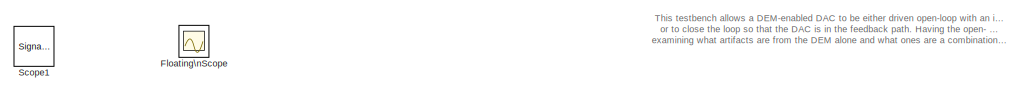
[diagram: root canvas - part 1/4, top left region]
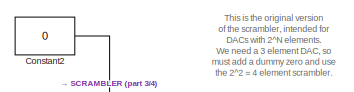
[diagram: root canvas - part 2/4, top right region]
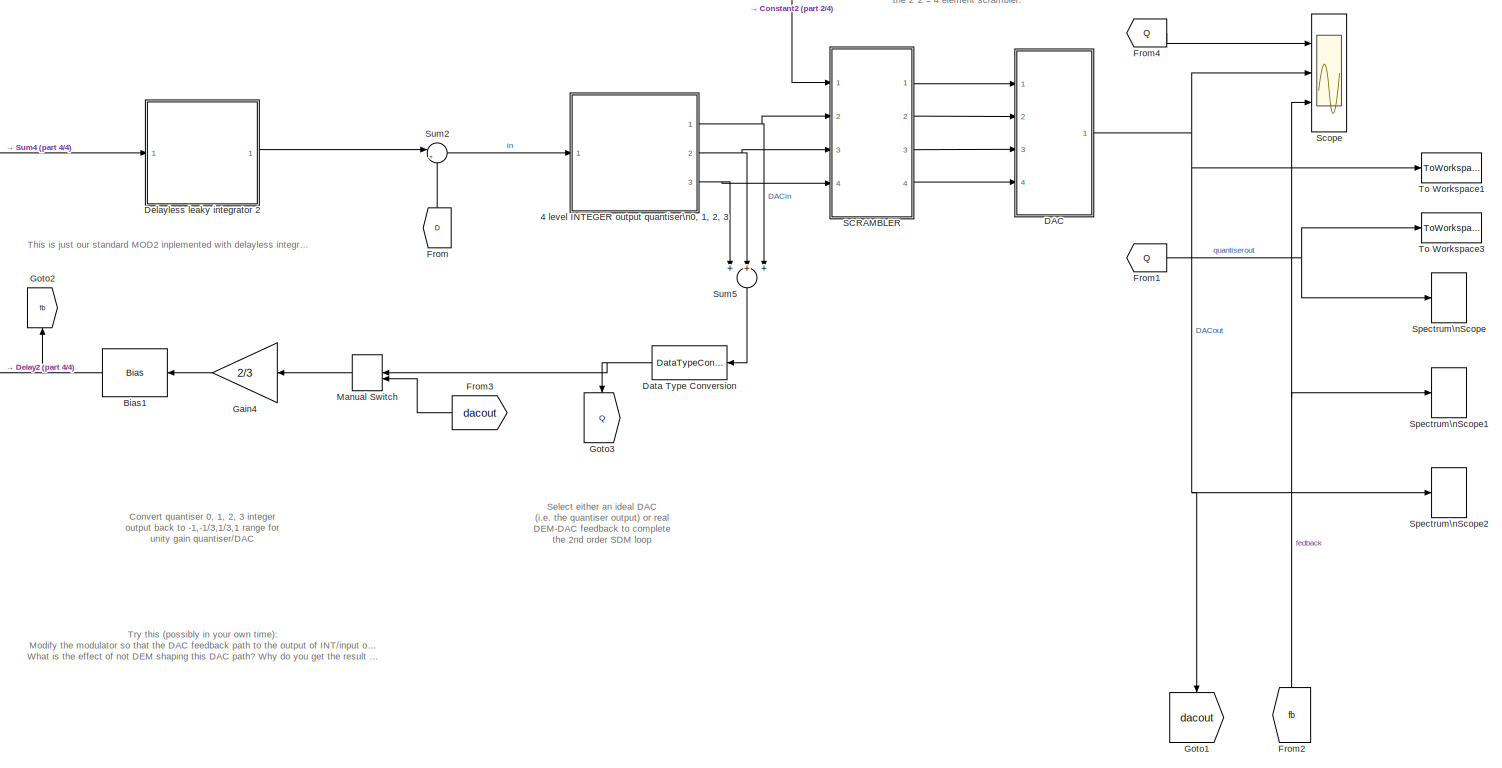
[diagram: root canvas - part 3/4, center side, full height]
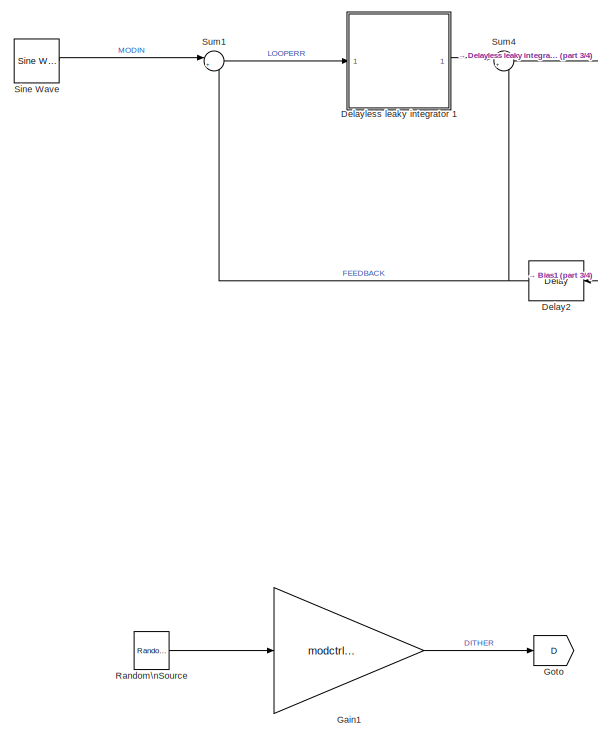
[diagram: root canvas - part 4/4, middle left region]
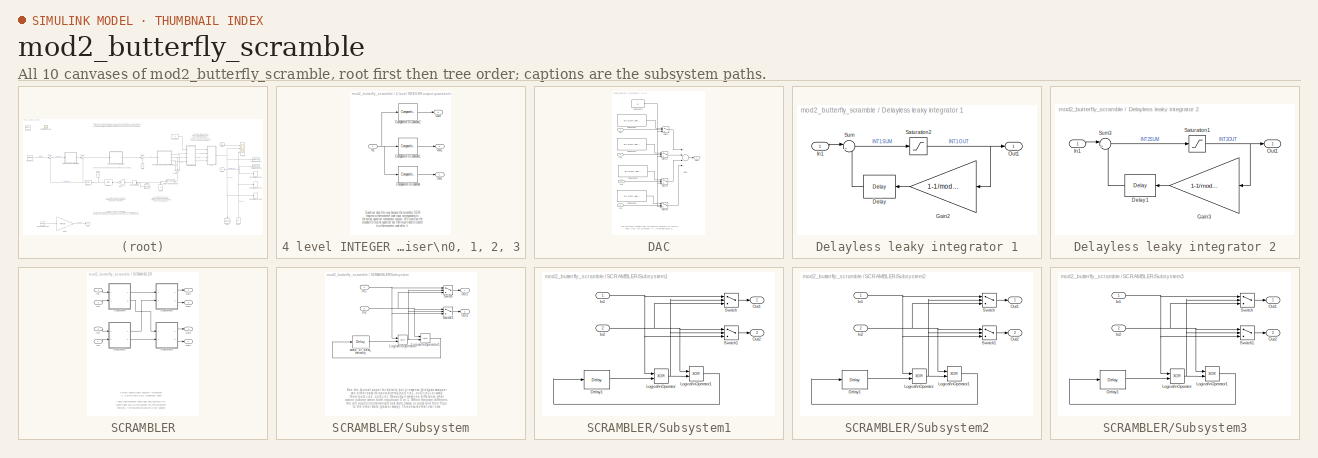
[diagram: thumbnail index - all 10 canvases of the model, root first then tree order]
MODEL mod2_butterfly_scramble
KIND model
BLOCK [SubSystem] 4 level INTEGER  output quantiser\n0, 1, 2, 3
  FunctionWithSeparateData = off
  MaskHideContents = off
  MinAlgLoopOccurrences = off
  Opaque = off
  Ports = [1, 3]
  PropExecContextOutsideSubsystem = off
  RTWSystemCode = Auto
  RequestExecContextInheritance = off
  SID = 106
BLOCK [Reference] 4 level INTEGER  output quantiser\n0, 1, 2, 3/Compare\nTo Constant  REF=simulink/Logic and Bit\nOperations/Compare\nTo Constant
  FunctionWithSeparateData = off
  LogicOutDataTypeMode = uint8
  Ports = [1, 1]
  RTWMemSecDataConstants = Inherit from model
  RTWMemSecDataInternal = Inherit from model
  RTWMemSecDataParameters = Inherit from model
  RTWMemSecFuncExecute = Inherit from model
  RTWMemSecFuncInitTerm = Inherit from model
  SID = 70
  ShowPortLabels = FromPortIcon
  SourceBlock = simulink/Logic and Bit\nOperations/Compare\nTo Constant
  SourceType = Compare To Constant
  SystemSampleTime = -1
  ZeroCross = on
  const = -2/3
  relop = >=
BLOCK [Reference] 4 level INTEGER  output quantiser\n0, 1, 2, 3/Compare\nTo Constant1  REF=simulink/Logic and Bit\nOperations/Compare\nTo Constant
  FunctionWithSeparateData = off
  LogicOutDataTypeMode = uint8
  Ports = [1, 1]
  RTWMemSecDataConstants = Inherit from model
  RTWMemSecDataInternal = Inherit from model
  RTWMemSecDataParameters = Inherit from model
  RTWMemSecFuncExecute = Inherit from model
  RTWMemSecFuncInitTerm = Inherit from model
  SID = 71
  ShowPortLabels = FromPortIcon
  SourceBlock = simulink/Logic and Bit\nOperations/Compare\nTo Constant
  SourceType = Compare To Constant
  SystemSampleTime = -1
  ZeroCross = on
  const = 0
  relop = >=
BLOCK [Reference] 4 level INTEGER  output quantiser\n0, 1, 2, 3/Compare\nTo Constant2  REF=simulink/Logic and Bit\nOperations/Compare\nTo Constant
  FunctionWithSeparateData = off
  LogicOutDataTypeMode = uint8
  Ports = [1, 1]
  RTWMemSecDataConstants = Inherit from model
  RTWMemSecDataInternal = Inherit from model
  RTWMemSecDataParameters = Inherit from model
  RTWMemSecFuncExecute = Inherit from model
  RTWMemSecFuncInitTerm = Inherit from model
  SID = 72
  ShowPortLabels = FromPortIcon
  SourceBlock = simulink/Logic and Bit\nOperations/Compare\nTo Constant
  SourceType = Compare To Constant
  SystemSampleTime = -1
  ZeroCross = on
  const = 2/3
  relop = >=
BLOCK [Inport] 4 level INTEGER  output quantiser\n0, 1, 2, 3/In1
  IconDisplay = Port number
  SID = 107
BLOCK [Outport] 4 level INTEGER  output quantiser\n0, 1, 2, 3/Out1
  IconDisplay = Port number
  SID = 108
BLOCK [Outport] 4 level INTEGER  output quantiser\n0, 1, 2, 3/Out2
  IconDisplay = Port number
  Port = 2
  SID = 126
BLOCK [Outport] 4 level INTEGER  output quantiser\n0, 1, 2, 3/Out3
  IconDisplay = Port number
  Port = 3
  SID = 127
BLOCK [Bias] Bias1
  Bias = -1
  SID = 98
  SaturateOnIntegerOverflow = off
BLOCK [Constant] Constant2
  SID = 179
  SampleTime = 1/Fs
  Value = 0
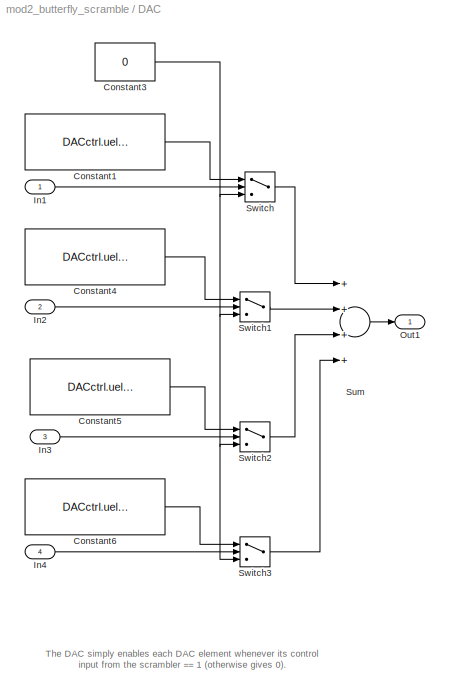
BLOCK [SubSystem] DAC
  FunctionWithSeparateData = off
  MaskHideContents = off
  MinAlgLoopOccurrences = off
  Opaque = off
  Ports = [4, 1]
  PropExecContextOutsideSubsystem = off
  RTWSystemCode = Auto
  RequestExecContextInheritance = off
  SID = 193
BLOCK [Constant] DAC/Constant1
  SID = 90
  SampleTime = 1/Fs
  Value = DACctrl.uelement(1)
BLOCK [Constant] DAC/Constant3
  SID = 182
  SampleTime = 1/Fs
  Value = 0
BLOCK [Constant] DAC/Constant4
  SID = 187
  SampleTime = 1/Fs
  Value = DACctrl.uelement(2)
BLOCK [Constant] DAC/Constant5
  SID = 189
  SampleTime = 1/Fs
  Value = DACctrl.uelement(3)
BLOCK [Constant] DAC/Constant6
  SID = 191
  SampleTime = 1/Fs
  Value = DACctrl.uelement(4)
BLOCK [Inport] DAC/In1
  IconDisplay = Port number
  SID = 194
BLOCK [Inport] DAC/In2
  IconDisplay = Port number
  Port = 2
  SID = 195
BLOCK [Inport] DAC/In3
  IconDisplay = Port number
  Port = 3
  SID = 197
BLOCK [Inport] DAC/In4
  IconDisplay = Port number
  Port = 4
  SID = 198
BLOCK [Outport] DAC/Out1
  IconDisplay = Port number
  SID = 196
BLOCK [Sum] DAC/Sum
  InputSameDT = off
  Inputs = ++++
  OutDataTypeStr = Inherit: Inherit via internal rule
  Ports = [4, 1]
  SID = 183
  SaturateOnIntegerOverflow = off
BLOCK [Switch] DAC/Switch
  InputSameDT = off
  SID = 181
  SaturateOnIntegerOverflow = off
  Threshold = 0.1
BLOCK [Switch] DAC/Switch1
  InputSameDT = off
  SID = 188
  SaturateOnIntegerOverflow = off
  Threshold = 0.1
BLOCK [Switch] DAC/Switch2
  InputSameDT = off
  SID = 190
  SaturateOnIntegerOverflow = off
  Threshold = 0.1
BLOCK [Switch] DAC/Switch3
  InputSameDT = off
  SID = 192
  SaturateOnIntegerOverflow = off
  Threshold = 0.1
BLOCK [DataTypeConversion] Data Type Conversion
  RndMeth = Floor
  SID = 117
  SaturateOnIntegerOverflow = off
BLOCK [Reference] Delay2  REF=dspsigops/Delay
  InputProcessing = Columns as channels (frame based)
  Ports = [1, 1]
  SID = 69
  SourceBlock = dspsigops/Delay
  SourceType = Delay
  UserData = DataTag0
  UserDataPersistent = on
  delay = 1
  dif_ic_for_ch = off
  dif_ic_for_dly = off
  dly_unit = Samples
  ic = 0
  ic_detail = off
  reset_popup = None
BLOCK [SubSystem] Delayless leaky integrator 1
  FunctionWithSeparateData = off
  MaskHideContents = off
  MinAlgLoopOccurrences = off
  Opaque = off
  Ports = [1, 1]
  PropExecContextOutsideSubsystem = off
  RTWSystemCode = Auto
  RequestExecContextInheritance = off
  SID = 109
BLOCK [Reference] Delayless leaky integrator 1/Delay  REF=dspsigops/Delay
  Ports = [1, 1]
  SID = 67
  SourceBlock = dspsigops/Delay
  SourceType = Delay
  UserData = DataTag1
  UserDataPersistent = on
  delay = 1
  dif_ic_for_ch = off
  dif_ic_for_dly = off
  dly_unit = Samples
  ic = 0
  ic_detail = off
  reset_popup = None
BLOCK [Gain] Delayless leaky integrator 1/Gain2
  AttributesFormatString = Integrator leakage
  Gain = 1-1/modctrl.igain1
  OutDataTypeStr = Inherit: Inherit via internal rule
  ParamDataTypeStr = Inherit: Inherit via internal rule
  SID = 32
  SaturateOnIntegerOverflow = off
BLOCK [Inport] Delayless leaky integrator 1/In1
  IconDisplay = Port number
  SID = 111
BLOCK [Outport] Delayless leaky integrator 1/Out1
  IconDisplay = Port number
  SID = 110
BLOCK [Saturate] Delayless leaky integrator 1/Saturation2
  InputPortMap = u0
  LowerLimit = -(modctrl.isat1)
  Ports = [1, 1]
  SID = 86
  UpperLimit = modctrl.isat1
BLOCK [Sum] Delayless leaky integrator 1/Sum
  AttributesFormatString = Integrator summer
  IconShape = round
  InputSameDT = off
  Inputs = |++
  OutDataTypeStr = Inherit: Inherit via internal rule
  Ports = [2, 1]
  SID = 3
  SaturateOnIntegerOverflow = off
BLOCK [SubSystem] Delayless leaky integrator 2
  FunctionWithSeparateData = off
  MaskHideContents = off
  MinAlgLoopOccurrences = off
  Opaque = off
  Ports = [1, 1]
  PropExecContextOutsideSubsystem = off
  RTWSystemCode = Auto
  RequestExecContextInheritance = off
  SID = 112
BLOCK [Reference] Delayless leaky integrator 2/Delay1  REF=dspsigops/Delay
  Ports = [1, 1]
  SID = 68
  SourceBlock = dspsigops/Delay
  SourceType = Delay
  UserData = DataTag2
  UserDataPersistent = on
  delay = 1
  dif_ic_for_ch = off
  dif_ic_for_dly = off
  dly_unit = Samples
  ic = 0
  ic_detail = off
  reset_popup = None
BLOCK [Gain] Delayless leaky integrator 2/Gain3
  AttributesFormatString = Integrator leakage
  Gain = 1-1/modctrl.igain2
  OutDataTypeStr = Inherit: Inherit via internal rule
  ParamDataTypeStr = Inherit: Inherit via internal rule
  SID = 61
  SaturateOnIntegerOverflow = off
BLOCK [Inport] Delayless leaky integrator 2/In1
  IconDisplay = Port number
  SID = 114
BLOCK [Outport] Delayless leaky integrator 2/Out1
  IconDisplay = Port number
  SID = 113
BLOCK [Saturate] Delayless leaky integrator 2/Saturation1
  InputPortMap = u0
  LowerLimit = -(modctrl.isat2)
  Ports = [1, 1]
  SID = 62
  UpperLimit = modctrl.isat2
BLOCK [Sum] Delayless leaky integrator 2/Sum3
  AttributesFormatString = Integrator summer
  IconShape = round
  InputSameDT = off
  Inputs = |++
  OutDataTypeStr = Inherit: Inherit via internal rule
  Ports = [2, 1]
  SID = 63
  SaturateOnIntegerOverflow = off
BLOCK [Scope] Floating\nScope
  DataFormat = StructureWithTime
  Floating = on
  IOType = viewer
  NumInputPorts = 1
  Ports = []
  SID = 201
  SampleTime = 0
  SaveName = ScopeData1
  ShowLegends = off
BLOCK [From] From
  GotoTag = D
  SID = 93
BLOCK [From] From1
  GotoTag = Q
  SID = 123
BLOCK [From] From2
  GotoTag = fb
  SID = 102
BLOCK [From] From3
  GotoTag = dacout
  SID = 124
BLOCK [From] From4
  GotoTag = Q
  SID = 200
BLOCK [Gain] Gain1
  AttributesFormatString = Dither level adjust
  Gain = modctrl.dgain1
  OutDataTypeStr = Inherit: Inherit via internal rule
  ParamDataTypeStr = Inherit: Inherit via internal rule
  SID = 29
  SaturateOnIntegerOverflow = off
BLOCK [Gain] Gain4
  AttributesFormatString = Integrator leakage
  Gain = 2/3
  OutDataTypeStr = Inherit: Inherit via internal rule
  ParamDataTypeStr = Inherit: Inherit via internal rule
  SID = 99
  SaturateOnIntegerOverflow = off
BLOCK [Goto] Goto
  GotoTag = D
  SID = 92
BLOCK [Goto] Goto1
  GotoTag = dacout
  SID = 122
BLOCK [Goto] Goto2
  GotoTag = fb
  SID = 100
BLOCK [Goto] Goto3
  GotoTag = Q
  SID = 125
BLOCK [ManualSwitch] Manual Switch
  SID = 94
BLOCK [Reference] Random\nSource  REF=dspsrcs4/Random\nSource
  AttributesFormatString = Dither source
  CltLength = 12
  DataType = Double
  IsInherit = off
  MaxVal = 1
  MeanVal = 0
  MinVal = -1
  NormMethod = Ziggurat
  OutComplex = Real
  Ports = [0, 1]
  RepMode = Not repeatable
  SID = 25
  SampFrame = 1
  SampMode = Discrete
  SampTime = 1/Fs
  SourceBlock = dspsrcs4/Random\nSource
  SourceType = Random Source
  SrcType = Uniform
  UserData = DataTag3
  UserDataPersistent = on
  VarVal = 1
  rawSeed = 1
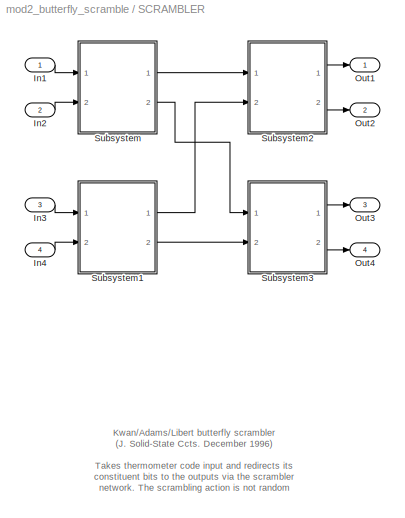
BLOCK [SubSystem] SCRAMBLER
  FunctionWithSeparateData = off
  MaskHideContents = off
  MinAlgLoopOccurrences = off
  Opaque = off
  Ports = [4, 4]
  PropExecContextOutsideSubsystem = off
  RTWSystemCode = Auto
  RequestExecContextInheritance = off
  SID = 170
BLOCK [Inport] SCRAMBLER/In1
  IconDisplay = Port number
  SID = 171
BLOCK [Inport] SCRAMBLER/In2
  IconDisplay = Port number
  Port = 2
  SID = 173
BLOCK [Inport] SCRAMBLER/In3
  IconDisplay = Port number
  Port = 3
  SID = 175
BLOCK [Inport] SCRAMBLER/In4
  IconDisplay = Port number
  Port = 4
  SID = 177
BLOCK [Outport] SCRAMBLER/Out1
  IconDisplay = Port number
  SID = 172
BLOCK [Outport] SCRAMBLER/Out2
  IconDisplay = Port number
  Port = 2
  SID = 174
BLOCK [Outport] SCRAMBLER/Out3
  IconDisplay = Port number
  Port = 3
  SID = 176
BLOCK [Outport] SCRAMBLER/Out4
  IconDisplay = Port number
  Port = 4
  SID = 178
BLOCK [SubSystem] SCRAMBLER/Subsystem
  FunctionWithSeparateData = off
  MaskHideContents = off
  MinAlgLoopOccurrences = off
  Opaque = off
  Ports = [2, 2]
  PropExecContextOutsideSubsystem = off
  RTWSystemCode = Auto
  RequestExecContextInheritance = off
  SID = 135
BLOCK [Inport] SCRAMBLER/Subsystem/In1
  IconDisplay = Port number
  SID = 136
BLOCK [Inport] SCRAMBLER/Subsystem/In2
  IconDisplay = Port number
  Port = 2
  SID = 138
BLOCK [Logic] SCRAMBLER/Subsystem/Logical\nOperator
  AllPortsSameDT = off
  Operator = XOR
  OutDataTypeStr = boolean
  Ports = [2, 1]
  SID = 131
BLOCK [Logic] SCRAMBLER/Subsystem/Logical\nOperator1
  AllPortsSameDT = off
  Operator = XOR
  OutDataTypeStr = boolean
  Ports = [2, 1]
  SID = 132
BLOCK [Outport] SCRAMBLER/Subsystem/Out1
  IconDisplay = Port number
  SID = 137
BLOCK [Outport] SCRAMBLER/Subsystem/Out2
  IconDisplay = Port number
  Port = 2
  SID = 139
BLOCK [Switch] SCRAMBLER/Subsystem/Switch
  InputSameDT = off
  SID = 133
  SaturateOnIntegerOverflow = off
  Threshold = 0.1
BLOCK [Switch] SCRAMBLER/Subsystem/Switch1
  InputSameDT = off
  SID = 134
  SaturateOnIntegerOverflow = off
  Threshold = 0.1
BLOCK [Reference] SCRAMBLER/Subsystem/swap_or_pass_memory  REF=dspsigops/Delay
  Ports = [1, 1]
  SID = 130
  SourceBlock = dspsigops/Delay
  SourceType = Delay
  delay = 1
  dif_ic_for_ch = off
  dif_ic_for_dly = off
  dly_unit = Samples
  ic = 0
  ic_detail = off
  reset_popup = None
BLOCK [SubSystem] SCRAMBLER/Subsystem1
  FunctionWithSeparateData = off
  MaskHideContents = off
  MinAlgLoopOccurrences = off
  Opaque = off
  Ports = [2, 2]
  PropExecContextOutsideSubsystem = off
  RTWSystemCode = Auto
  RequestExecContextInheritance = off
  SID = 140
BLOCK [Reference] SCRAMBLER/Subsystem1/Delay1  REF=dspsigops/Delay
  Ports = [1, 1]
  SID = 143
  SourceBlock = dspsigops/Delay
  SourceType = Delay
  delay = 1
  dif_ic_for_ch = off
  dif_ic_for_dly = off
  dly_unit = Samples
  ic = 0
  ic_detail = off
  reset_popup = None
BLOCK [Inport] SCRAMBLER/Subsystem1/In1
  IconDisplay = Port number
  SID = 141
BLOCK [Inport] SCRAMBLER/Subsystem1/In2
  IconDisplay = Port number
  Port = 2
  SID = 142
BLOCK [Logic] SCRAMBLER/Subsystem1/Logical\nOperator
  AllPortsSameDT = off
  Operator = XOR
  OutDataTypeStr = boolean
  Ports = [2, 1]
  SID = 144
BLOCK [Logic] SCRAMBLER/Subsystem1/Logical\nOperator1
  AllPortsSameDT = off
  Operator = XOR
  OutDataTypeStr = boolean
  Ports = [2, 1]
  SID = 145
BLOCK [Outport] SCRAMBLER/Subsystem1/Out1
  IconDisplay = Port number
  SID = 148
BLOCK [Outport] SCRAMBLER/Subsystem1/Out2
  IconDisplay = Port number
  Port = 2
  SID = 149
BLOCK [Switch] SCRAMBLER/Subsystem1/Switch
  InputSameDT = off
  SID = 146
  SaturateOnIntegerOverflow = off
  Threshold = 0.1
BLOCK [Switch] SCRAMBLER/Subsystem1/Switch1
  InputSameDT = off
  SID = 147
  SaturateOnIntegerOverflow = off
  Threshold = 0.1
BLOCK [SubSystem] SCRAMBLER/Subsystem2
  FunctionWithSeparateData = off
  MaskHideContents = off
  MinAlgLoopOccurrences = off
  Opaque = off
  Ports = [2, 2]
  PropExecContextOutsideSubsystem = off
  RTWSystemCode = Auto
  RequestExecContextInheritance = off
  SID = 150
BLOCK [Reference] SCRAMBLER/Subsystem2/Delay1  REF=dspsigops/Delay
  Ports = [1, 1]
  SID = 153
  SourceBlock = dspsigops/Delay
  SourceType = Delay
  delay = 1
  dif_ic_for_ch = off
  dif_ic_for_dly = off
  dly_unit = Samples
  ic = 0
  ic_detail = off
  reset_popup = None
BLOCK [Inport] SCRAMBLER/Subsystem2/In1
  IconDisplay = Port number
  SID = 151
BLOCK [Inport] SCRAMBLER/Subsystem2/In2
  IconDisplay = Port number
  Port = 2
  SID = 152
BLOCK [Logic] SCRAMBLER/Subsystem2/Logical\nOperator
  AllPortsSameDT = off
  Operator = XOR
  OutDataTypeStr = boolean
  Ports = [2, 1]
  SID = 154
BLOCK [Logic] SCRAMBLER/Subsystem2/Logical\nOperator1
  AllPortsSameDT = off
  Operator = XOR
  OutDataTypeStr = boolean
  Ports = [2, 1]
  SID = 155
BLOCK [Outport] SCRAMBLER/Subsystem2/Out1
  IconDisplay = Port number
  SID = 158
BLOCK [Outport] SCRAMBLER/Subsystem2/Out2
  IconDisplay = Port number
  Port = 2
  SID = 159
BLOCK [Switch] SCRAMBLER/Subsystem2/Switch
  InputSameDT = off
  SID = 156
  SaturateOnIntegerOverflow = off
  Threshold = 0.1
BLOCK [Switch] SCRAMBLER/Subsystem2/Switch1
  InputSameDT = off
  SID = 157
  SaturateOnIntegerOverflow = off
  Threshold = 0.1
BLOCK [SubSystem] SCRAMBLER/Subsystem3
  FunctionWithSeparateData = off
  MaskHideContents = off
  MinAlgLoopOccurrences = off
  Opaque = off
  Ports = [2, 2]
  PropExecContextOutsideSubsystem = off
  RTWSystemCode = Auto
  RequestExecContextInheritance = off
  SID = 160
BLOCK [Reference] SCRAMBLER/Subsystem3/Delay1  REF=dspsigops/Delay
  Ports = [1, 1]
  SID = 163
  SourceBlock = dspsigops/Delay
  SourceType = Delay
  delay = 1
  dif_ic_for_ch = off
  dif_ic_for_dly = off
  dly_unit = Samples
  ic = 0
  ic_detail = off
  reset_popup = None
BLOCK [Inport] SCRAMBLER/Subsystem3/In1
  IconDisplay = Port number
  SID = 161
BLOCK [Inport] SCRAMBLER/Subsystem3/In2
  IconDisplay = Port number
  Port = 2
  SID = 162
BLOCK [Logic] SCRAMBLER/Subsystem3/Logical\nOperator
  AllPortsSameDT = off
  Operator = XOR
  OutDataTypeStr = boolean
  Ports = [2, 1]
  SID = 164
BLOCK [Logic] SCRAMBLER/Subsystem3/Logical\nOperator1
  AllPortsSameDT = off
  Operator = XOR
  OutDataTypeStr = boolean
  Ports = [2, 1]
  SID = 165
BLOCK [Outport] SCRAMBLER/Subsystem3/Out1
  IconDisplay = Port number
  SID = 168
BLOCK [Outport] SCRAMBLER/Subsystem3/Out2
  IconDisplay = Port number
  Port = 2
  SID = 169
BLOCK [Switch] SCRAMBLER/Subsystem3/Switch
  InputSameDT = off
  SID = 166
  SaturateOnIntegerOverflow = off
  Threshold = 0.1
BLOCK [Switch] SCRAMBLER/Subsystem3/Switch1
  InputSameDT = off
  SID = 167
  SaturateOnIntegerOverflow = off
  Threshold = 0.1
BLOCK [Scope] Scope
  DataFormat = StructureWithTime
  Floating = off
  NumInputPorts = 3
  Ports = [3]
  SID = 80
  SampleTime = 0
  ShowLegends = off
  YMax = 5~5~5
  YMin = -5~-5~-5
  ZoomMode = xonly
BLOCK [SignalViewerScope] Scope1
  IOType = viewer
  MaxDataPoints = 7500
  NumInputPorts = 1
  Ports = []
  RefreshTime = 0.035000
  SID = 202
  ShowDataMarkers = off
  ShowLegends = off
BLOCK [Reference] Sine Wave  REF=dspsrcs4/Sine Wave
  Amplitude = sinamp
  CompMethod = Trigonometric fcn
  Frequency = sinfreq
  LastOutDataTypeStr = double
  OutComplex = Real
  OutDataTypeStr = double
  Phase = 0
  Ports = [0, 1]
  ResetState = Restart at time zero
  SID = 85
  SampleMode = Discrete
  SampleTime = 1/Fs
  SamplesPerFrame = 1
  SourceBlock = dspsrcs4/Sine Wave
  SourceType = Sine Wave
  TableSize = Speed
  additionalParams = off
  allowOverrides = on
  dataType = double
  fracBitsMode = Best precision
  numFracBits = 15
  udDataType = sfix(16)
  wordLen = 16
BLOCK [SpectrumAnalyzer] Spectrum\nScope
  CloseFcn = scopeextensions.ScopeBlock.callback(gcbh, 'onBlockClose');
  CopyFcn = scopeextensions.ScopeBlock.callback(gcbh, 'onBlockCopy', gcbh);
  DeleteFcn = scopeextensions.ScopeBlock.callback(gcbh, 'onBlockDelete');
  NameChangeFcn = scopeextensions.ScopeBlock.callback(gcbh, 'onBlockRename');
  Ports = [1]
  PreDeleteFcn = scopeextensions.ScopeBlock.callback(gcbh, 'onBlockPreDelete');
  PreSaveFcn = scopeextensions.ScopeBlock.callback(gcbh, 'onModelSave');
  SID = 21
  UserData = DataTag4
  UserDataPersistent = on
BLOCK [SpectrumAnalyzer] Spectrum\nScope1
  CloseFcn = scopeextensions.ScopeBlock.callback(gcbh, 'onBlockClose');
  CopyFcn = scopeextensions.ScopeBlock.callback(gcbh, 'onBlockCopy', gcbh);
  DeleteFcn = scopeextensions.ScopeBlock.callback(gcbh, 'onBlockDelete');
  NameChangeFcn = scopeextensions.ScopeBlock.callback(gcbh, 'onBlockRename');
  Ports = [1]
  PreDeleteFcn = scopeextensions.ScopeBlock.callback(gcbh, 'onBlockPreDelete');
  PreSaveFcn = scopeextensions.ScopeBlock.callback(gcbh, 'onModelSave');
  SID = 203
  UserData = DataTag5
  UserDataPersistent = on
BLOCK [SpectrumAnalyzer] Spectrum\nScope2
  CloseFcn = scopeextensions.ScopeBlock.callback(gcbh, 'onBlockClose');
  CopyFcn = scopeextensions.ScopeBlock.callback(gcbh, 'onBlockCopy', gcbh);
  DeleteFcn = scopeextensions.ScopeBlock.callback(gcbh, 'onBlockDelete');
  NameChangeFcn = scopeextensions.ScopeBlock.callback(gcbh, 'onBlockRename');
  Ports = [1]
  PreDeleteFcn = scopeextensions.ScopeBlock.callback(gcbh, 'onBlockPreDelete');
  PreSaveFcn = scopeextensions.ScopeBlock.callback(gcbh, 'onModelSave');
  SID = 204
  UserData = DataTag6
  UserDataPersistent = on
BLOCK [Sum] Sum1
  AttributesFormatString = Modulator input\\nloop servo error (input - fbk)
  IconShape = round
  InputSameDT = off
  Inputs = |+-
  OutDataTypeStr = Inherit: Inherit via internal rule
  Ports = [2, 1]
  SID = 7
  SaturateOnIntegerOverflow = off
BLOCK [Sum] Sum2
  IconShape = round
  InputSameDT = off
  Inputs = |++
  OutDataTypeStr = Inherit: Inherit via internal rule
  Ports = [2, 1]
  SID = 30
  SaturateOnIntegerOverflow = off
BLOCK [Sum] Sum4
  IconShape = round
  InputSameDT = off
  Inputs = |+-
  OutDataTypeStr = Inherit: Inherit via internal rule
  Ports = [2, 1]
  SID = 64
  SaturateOnIntegerOverflow = off
BLOCK [Sum] Sum5
  InputSameDT = off
  Inputs = +++
  OutDataTypeStr = Inherit: Inherit via internal rule
  Ports = [3, 1]
  SID = 129
  SaturateOnIntegerOverflow = off
BLOCK [ToWorkspace] To Workspace1
  MaxDataPoints = inf
  Ports = [1]
  SID = 91
  SampleTime = -1
  VariableName = DACout
BLOCK [ToWorkspace] To Workspace3
  MaxDataPoints = inf
  Ports = [1]
  SID = 115
  SampleTime = -1
  VariableName = Qout
ANNOTATION (root): Select either an ideal DAC \n(i.e. the quantiser output) or real\nDEM-DAC feedback to complete\nthe 2nd order SDM loop
ANNOTATION (root): This is just our standard MOD2 inplemented with delayless integrators and a 2-bit quantiser/DAC \n\n\n\n\n\n\n\n\n\n\n\n\n\n\n\n\n
ANNOTATION (root): Convert quantiser 0, 1, 2, 3 integer\noutput back to -1,-1/3,1/3,1 range for\nunity gain quantiser/DAC
ANNOTATION (root): This is the original version\nof the scrambler, intended for\nDACs with 2^N elements.\nWe need a 3 element DAC, so\nmust add a dummy zero and use\nthe 2^2 = 4 element scrambler.
ANNOTATION (root): This testbench allows a DEM-enabled DAC to be either driven open-loop with an ideal 2nd order, 2-bit SDM modulated input,\nor to close the loop so that the DAC is in the feedback path. Having the open- and closed-loop options helps in\nexamining what artifacts are from the DEM alone and what ones are a combination of the DEM and SDM loop dynamics
ANNOTATION (root): Try this (possibly in your own time):\nModify the modulator so that the DAC feedback path to the output of INT/input of INT2 is not DEM shaped.\nWhat is the effect of not DEM shaping this DAC path? Why do you get the result you do?
ANNOTATION 4 level INTEGER  output quantiser\n0, 1, 2, 3: Quantiser done this way because the scrambler DEM\nrequires a thermometer code input corresponding to\nthe actual quantiser comparator outputs. We could use the\nstandard Simulink quantiser but then would need to convert\nto a thermometer code after it.
ANNOTATION DAC: The DAC simply enables each DAC element whenever its control\ninput from the scrambler == 1 (otherwise gives 0).
ANNOTATION SCRAMBLER: Kwan/Adams/Libert butterfly scrambler\n(J. Solid-State Ccts. December 1996)\n\nTakes thermometer code input and redirects its\nconstituent bits to the outputs via the scrambler\nnetwork. The scrambling action is not random\nand results in 1st order noise-shaping (see\nthe Journal paper for details), rather than\nwhite noise as happens in the random case.\n\nMore complicated and hardware intensive ...<+68ch>
ANNOTATION SCRAMBLER/Subsystem: See the Journal paper for details, but in essence this basic swapper\ncan either pass its inputs directly (out1=in1, out2=in2) or swap\nthem (out1=in2, out2=in). Obviously it makes no difference what\naction is done when both inputs are 0 or 1. When they are different,\nthe cell applies its memorised last state (swap or pass) and then flips\nto the other state (pass or swap). This ensures that ove...<+178ch>
LINE 4 level INTEGER  output quantiser\n0, 1, 2, 3/Compare\nTo Constant1:1 -> 4 level INTEGER  output quantiser\n0, 1, 2, 3/Out2:1
LINE 4 level INTEGER  output quantiser\n0, 1, 2, 3/Compare\nTo Constant2:1 -> 4 level INTEGER  output quantiser\n0, 1, 2, 3/Out3:1
LINE 4 level INTEGER  output quantiser\n0, 1, 2, 3/Compare\nTo Constant:1 -> 4 level INTEGER  output quantiser\n0, 1, 2, 3/Out1:1
NET 4 level INTEGER  output quantiser\n0, 1, 2, 3/In1:1 -> 4 level INTEGER  output quantiser\n0, 1, 2, 3/Compare\nTo Constant1:1, 4 level INTEGER  output quantiser\n0, 1, 2, 3/Compare\nTo Constant2:1, 4 level INTEGER  output quantiser\n0, 1, 2, 3/Compare\nTo Constant:1
NET 4 level INTEGER  output quantiser\n0, 1, 2, 3:1 -> SCRAMBLER:2, Sum5:3
NET 4 level INTEGER  output quantiser\n0, 1, 2, 3:2 -> SCRAMBLER:3, Sum5:2
NET 4 level INTEGER  output quantiser\n0, 1, 2, 3:3 -> SCRAMBLER:4, Sum5:1
NET Bias1:1 -> Delay2:1, Goto2:1
LINE Constant2:1 -> SCRAMBLER:1
LINE DAC/Constant1:1 -> DAC/Switch:1
NET DAC/Constant3:1 -> DAC/Switch1:3, DAC/Switch2:3, DAC/Switch3:3, DAC/Switch:3
LINE DAC/Constant4:1 -> DAC/Switch1:1
LINE DAC/Constant5:1 -> DAC/Switch2:1
LINE DAC/Constant6:1 -> DAC/Switch3:1
LINE DAC/In1:1 -> DAC/Switch:2
LINE DAC/In2:1 -> DAC/Switch1:2
LINE DAC/In3:1 -> DAC/Switch2:2
LINE DAC/In4:1 -> DAC/Switch3:2
LINE DAC/Sum:1 -> DAC/Out1:1
LINE DAC/Switch1:1 -> DAC/Sum:2
LINE DAC/Switch2:1 -> DAC/Sum:3
LINE DAC/Switch3:1 -> DAC/Sum:4
LINE DAC/Switch:1 -> DAC/Sum:1
NET DAC:1 -> Goto1:1, Scope:2, Spectrum\nScope2:1, To Workspace1:1
NET Data Type Conversion:1 -> Goto3:1, Manual Switch:1
NET Delay2:1 -> Sum1:2, Sum4:2
LINE Delayless leaky integrator 1/Delay:1 -> Delayless leaky integrator 1/Sum:2
LINE Delayless leaky integrator 1/Gain2:1 -> Delayless leaky integrator 1/Delay:1
LINE Delayless leaky integrator 1/In1:1 -> Delayless leaky integrator 1/Sum:1
NET Delayless leaky integrator 1/Saturation2:1 -> Delayless leaky integrator 1/Gain2:1, Delayless leaky integrator 1/Out1:1
LINE Delayless leaky integrator 1/Sum:1 -> Delayless leaky integrator 1/Saturation2:1
LINE Delayless leaky integrator 1:1 -> Sum4:1
LINE Delayless leaky integrator 2/Delay1:1 -> Delayless leaky integrator 2/Sum3:2
LINE Delayless leaky integrator 2/Gain3:1 -> Delayless leaky integrator 2/Delay1:1
LINE Delayless leaky integrator 2/In1:1 -> Delayless leaky integrator 2/Sum3:1
NET Delayless leaky integrator 2/Saturation1:1 -> Delayless leaky integrator 2/Gain3:1, Delayless leaky integrator 2/Out1:1
LINE Delayless leaky integrator 2/Sum3:1 -> Delayless leaky integrator 2/Saturation1:1
LINE Delayless leaky integrator 2:1 -> Sum2:1
NET From1:1 -> Spectrum\nScope:1, To Workspace3:1
NET From2:1 -> Scope:3, Spectrum\nScope1:1
LINE From3:1 -> Manual Switch:2
LINE From4:1 -> Scope:1
LINE From:1 -> Sum2:2
LINE Gain1:1 -> Goto:1
LINE Gain4:1 -> Bias1:1
LINE Manual Switch:1 -> Gain4:1
LINE Random\nSource:1 -> Gain1:1
LINE SCRAMBLER/In1:1 -> SCRAMBLER/Subsystem:1
LINE SCRAMBLER/In2:1 -> SCRAMBLER/Subsystem:2
LINE SCRAMBLER/In3:1 -> SCRAMBLER/Subsystem1:1
LINE SCRAMBLER/In4:1 -> SCRAMBLER/Subsystem1:2
NET SCRAMBLER/Subsystem/In1:1 -> SCRAMBLER/Subsystem/Logical\nOperator:1, SCRAMBLER/Subsystem/Switch1:3, SCRAMBLER/Subsystem/Switch:1
NET SCRAMBLER/Subsystem/In2:1 -> SCRAMBLER/Subsystem/Logical\nOperator1:1, SCRAMBLER/Subsystem/Switch1:1, SCRAMBLER/Subsystem/Switch:3
LINE SCRAMBLER/Subsystem/Logical\nOperator1:1 -> SCRAMBLER/Subsystem/swap_or_pass_memory:1
NET SCRAMBLER/Subsystem/Logical\nOperator:1 -> SCRAMBLER/Subsystem/Logical\nOperator1:2, SCRAMBLER/Subsystem/Switch1:2, SCRAMBLER/Subsystem/Switch:2
LINE SCRAMBLER/Subsystem/Switch1:1 -> SCRAMBLER/Subsystem/Out2:1
LINE SCRAMBLER/Subsystem/Switch:1 -> SCRAMBLER/Subsystem/Out1:1
LINE SCRAMBLER/Subsystem/swap_or_pass_memory:1 -> SCRAMBLER/Subsystem/Logical\nOperator:2
LINE SCRAMBLER/Subsystem1/Delay1:1 -> SCRAMBLER/Subsystem1/Logical\nOperator:2
NET SCRAMBLER/Subsystem1/In1:1 -> SCRAMBLER/Subsystem1/Logical\nOperator:1, SCRAMBLER/Subsystem1/Switch1:3, SCRAMBLER/Subsystem1/Switch:1
NET SCRAMBLER/Subsystem1/In2:1 -> SCRAMBLER/Subsystem1/Logical\nOperator1:1, SCRAMBLER/Subsystem1/Switch1:1, SCRAMBLER/Subsystem1/Switch:3
LINE SCRAMBLER/Subsystem1/Logical\nOperator1:1 -> SCRAMBLER/Subsystem1/Delay1:1
NET SCRAMBLER/Subsystem1/Logical\nOperator:1 -> SCRAMBLER/Subsystem1/Logical\nOperator1:2, SCRAMBLER/Subsystem1/Switch1:2, SCRAMBLER/Subsystem1/Switch:2
LINE SCRAMBLER/Subsystem1/Switch1:1 -> SCRAMBLER/Subsystem1/Out2:1
LINE SCRAMBLER/Subsystem1/Switch:1 -> SCRAMBLER/Subsystem1/Out1:1
LINE SCRAMBLER/Subsystem1:1 -> SCRAMBLER/Subsystem2:2
LINE SCRAMBLER/Subsystem1:2 -> SCRAMBLER/Subsystem3:2
LINE SCRAMBLER/Subsystem2/Delay1:1 -> SCRAMBLER/Subsystem2/Logical\nOperator:2
NET SCRAMBLER/Subsystem2/In1:1 -> SCRAMBLER/Subsystem2/Logical\nOperator:1, SCRAMBLER/Subsystem2/Switch1:3, SCRAMBLER/Subsystem2/Switch:1
NET SCRAMBLER/Subsystem2/In2:1 -> SCRAMBLER/Subsystem2/Logical\nOperator1:1, SCRAMBLER/Subsystem2/Switch1:1, SCRAMBLER/Subsystem2/Switch:3
LINE SCRAMBLER/Subsystem2/Logical\nOperator1:1 -> SCRAMBLER/Subsystem2/Delay1:1
NET SCRAMBLER/Subsystem2/Logical\nOperator:1 -> SCRAMBLER/Subsystem2/Logical\nOperator1:2, SCRAMBLER/Subsystem2/Switch1:2, SCRAMBLER/Subsystem2/Switch:2
LINE SCRAMBLER/Subsystem2/Switch1:1 -> SCRAMBLER/Subsystem2/Out2:1
LINE SCRAMBLER/Subsystem2/Switch:1 -> SCRAMBLER/Subsystem2/Out1:1
LINE SCRAMBLER/Subsystem2:1 -> SCRAMBLER/Out1:1
LINE SCRAMBLER/Subsystem2:2 -> SCRAMBLER/Out2:1
LINE SCRAMBLER/Subsystem3/Delay1:1 -> SCRAMBLER/Subsystem3/Logical\nOperator:2
NET SCRAMBLER/Subsystem3/In1:1 -> SCRAMBLER/Subsystem3/Logical\nOperator:1, SCRAMBLER/Subsystem3/Switch1:3, SCRAMBLER/Subsystem3/Switch:1
NET SCRAMBLER/Subsystem3/In2:1 -> SCRAMBLER/Subsystem3/Logical\nOperator1:1, SCRAMBLER/Subsystem3/Switch1:1, SCRAMBLER/Subsystem3/Switch:3
LINE SCRAMBLER/Subsystem3/Logical\nOperator1:1 -> SCRAMBLER/Subsystem3/Delay1:1
NET SCRAMBLER/Subsystem3/Logical\nOperator:1 -> SCRAMBLER/Subsystem3/Logical\nOperator1:2, SCRAMBLER/Subsystem3/Switch1:2, SCRAMBLER/Subsystem3/Switch:2
LINE SCRAMBLER/Subsystem3/Switch1:1 -> SCRAMBLER/Subsystem3/Out2:1
LINE SCRAMBLER/Subsystem3/Switch:1 -> SCRAMBLER/Subsystem3/Out1:1
LINE SCRAMBLER/Subsystem3:1 -> SCRAMBLER/Out3:1
LINE SCRAMBLER/Subsystem3:2 -> SCRAMBLER/Out4:1
LINE SCRAMBLER/Subsystem:1 -> SCRAMBLER/Subsystem2:1
LINE SCRAMBLER/Subsystem:2 -> SCRAMBLER/Subsystem3:1
LINE SCRAMBLER:1 -> DAC:1
LINE SCRAMBLER:2 -> DAC:2
LINE SCRAMBLER:3 -> DAC:3
LINE SCRAMBLER:4 -> DAC:4
LINE Sine Wave:1 -> Sum1:1
LINE Sum1:1 -> Delayless leaky integrator 1:1
LINE Sum2:1 -> 4 level INTEGER  output quantiser\n0, 1, 2, 3:1
LINE Sum4:1 -> Delayless leaky integrator 2:1
LINE Sum5:1 -> Data Type Conversion:1
note: NET lines group one-source signal fan-out (src -> all destinations, sorted); 1:1 wires keep LINE
